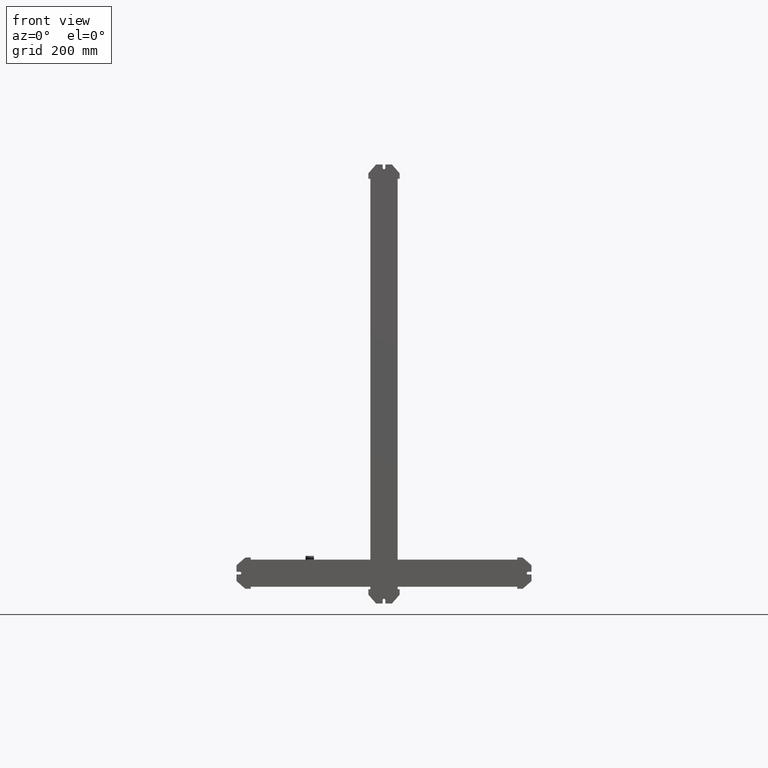
[diagram: clean part render]
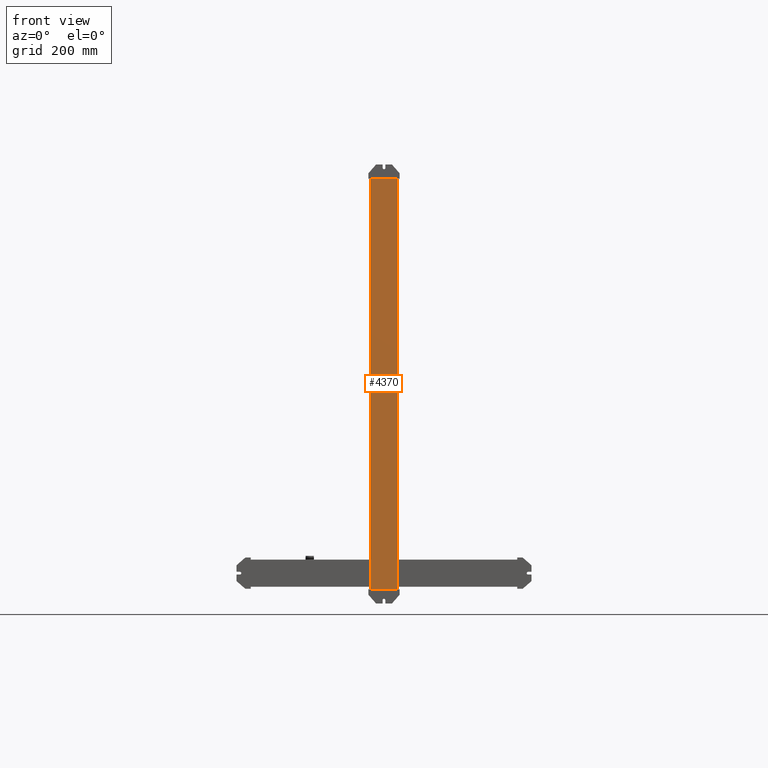
[diagram: same view with one face highlighted and labeled with its STEP entity id]
A machine part, front view. The second image highlights one B-rep face of the part: STEP entity #4370.
In plain terms, the highlighted planar face has unit normal (0, -1, 0).
Its self-contained STEP definition (entity closure, byte-faithful):
#4331=CARTESIAN_POINT('Axis2P3D Location',(0.,0.,0.)) ;
#4336=CARTESIAN_POINT('Line Origine',(0.,0.,453.)) ;
#4340=CARTESIAN_POINT('Vertex',(0.,0.,0.)) ;
#4342=CARTESIAN_POINT('Vertex',(0.,0.,906.)) ;
#4345=CARTESIAN_POINT('Line Origine',(30.,0.,0.)) ;
#4349=CARTESIAN_POINT('Vertex',(60.,0.,0.)) ;
#4352=CARTESIAN_POINT('Line Origine',(60.,0.,453.)) ;
#4356=CARTESIAN_POINT('Vertex',(60.,0.,906.)) ;
#4359=CARTESIAN_POINT('Line Origine',(30.,0.,906.)) ;
#4332=DIRECTION('Axis2P3D Direction',(0.,-1.,0.)) ;
#4333=DIRECTION('Axis2P3D XDirection',(1.,0.,0.)) ;
#4337=DIRECTION('Vector Direction',(0.,0.,1.)) ;
#4346=DIRECTION('Vector Direction',(1.,0.,0.)) ;
#4353=DIRECTION('Vector Direction',(0.,0.,1.)) ;
#4360=DIRECTION('Vector Direction',(1.,0.,0.)) ;
#4334=AXIS2_PLACEMENT_3D('Plane Axis2P3D',#4331,#4332,#4333) ;
#4365=ORIENTED_EDGE('',*,*,#4344,.F.) ;
#4366=ORIENTED_EDGE('',*,*,#4351,.T.) ;
#4367=ORIENTED_EDGE('',*,*,#4358,.T.) ;
#4368=ORIENTED_EDGE('',*,*,#4363,.F.) ;
#4338=VECTOR('Line Direction',#4337,1.) ;
#4347=VECTOR('Line Direction',#4346,1.) ;
#4354=VECTOR('Line Direction',#4353,1.) ;
#4361=VECTOR('Line Direction',#4360,1.) ;
#4370=ADVANCED_FACE('PartBody',(#4369),#4335,.T.) ;
#4344=EDGE_CURVE('',#4341,#4343,#4339,.T.) ;
#4351=EDGE_CURVE('',#4341,#4350,#4348,.T.) ;
#4358=EDGE_CURVE('',#4350,#4357,#4355,.T.) ;
#4363=EDGE_CURVE('',#4343,#4357,#4362,.T.) ;
#4364=EDGE_LOOP('',(#4365,#4366,#4367,#4368)) ;
#4369=FACE_OUTER_BOUND('',#4364,.T.) ;
#4339=LINE('Line',#4336,#4338) ;
#4348=LINE('Line',#4345,#4347) ;
#4355=LINE('Line',#4352,#4354) ;
#4362=LINE('Line',#4359,#4361) ;
#4335=PLANE('Plane',#4334) ;
#4341=VERTEX_POINT('',#4340) ;
#4343=VERTEX_POINT('',#4342) ;
#4350=VERTEX_POINT('',#4349) ;
#4357=VERTEX_POINT('',#4356) ;